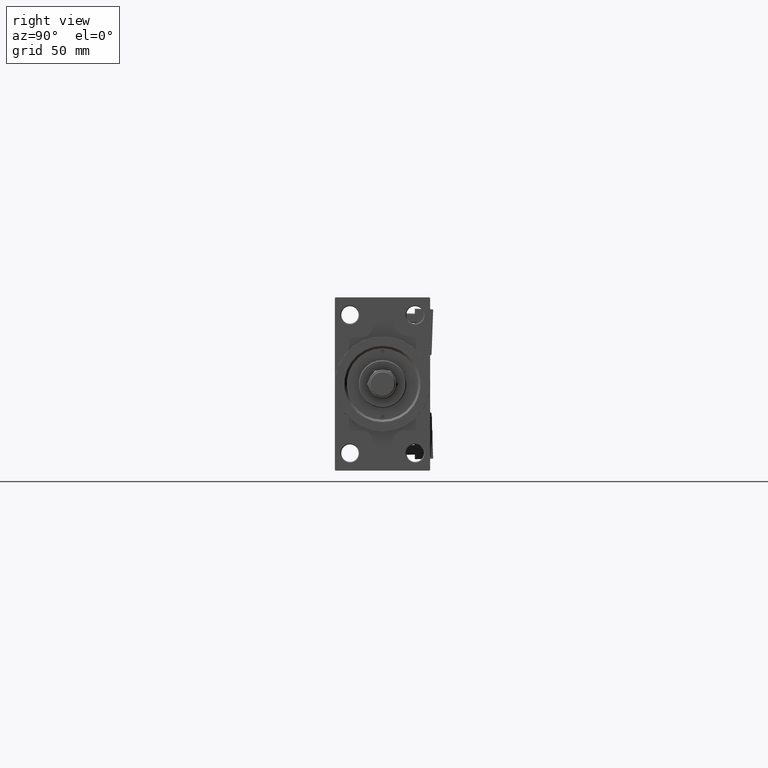
[diagram: clean part render]
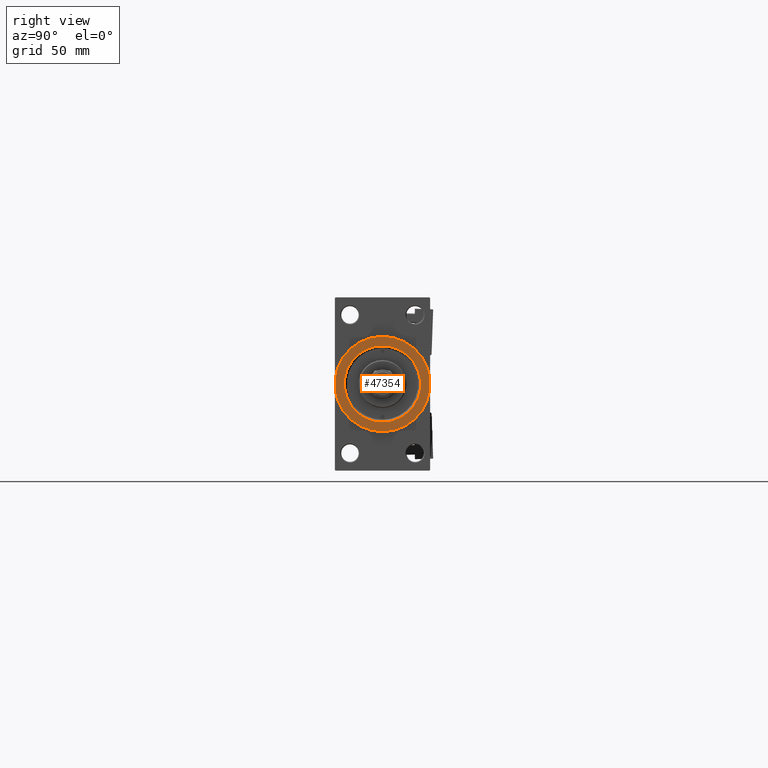
[diagram: same view with one face highlighted and labeled with its STEP entity id]
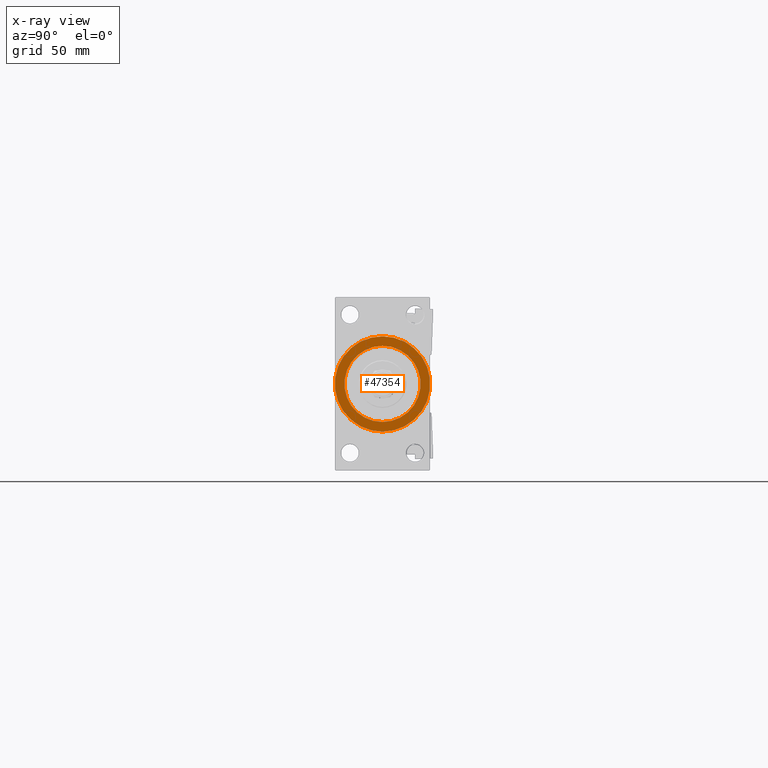
[diagram: x-ray of the same camera — body ghosted, the highlighted face saturated]
A machine part, right view. The second image highlights one B-rep face of the part: STEP entity #47354.
The next image is the same camera in x-ray: the body ghosted, the highlighted face saturated — about 0% of this face is hidden behind the body in this view.
In plain terms, the highlighted planar face has unit normal (1, 0, 0).
Its self-contained STEP definition (entity closure, byte-faithful):
#1306 = DIRECTION ( 'NONE',  ( -1.000000000000000000, -0.000000000000000000, -0.000000000000000000 ) ) ;
#1556 = DIRECTION ( 'NONE',  ( 0.000000000000000000, 0.000000000000000000, -1.000000000000000000 ) ) ;
#2044 = VERTEX_POINT ( 'NONE', #39478 ) ;
#2552 = DIRECTION ( 'NONE',  ( -1.000000000000000000, -0.000000000000000000, -0.000000000000000000 ) ) ;
#2893 = CIRCLE ( 'NONE', #24392, 30.00000000000000000 ) ;
#3105 = AXIS2_PLACEMENT_3D ( 'NONE', #17034, #9261, #40921 ) ;
#3656 = DIRECTION ( 'NONE',  ( 1.000000000000000000, 0.000000000000000000, 0.000000000000000000 ) ) ;
#4974 = CIRCLE ( 'NONE', #33119, 24.00000000000002487 ) ;
#5479 = EDGE_CURVE ( 'NONE', #21797, #15077, #4974, .T. ) ;
#5610 = FACE_OUTER_BOUND ( 'NONE', #23427, .T. ) ;
#9261 = DIRECTION ( 'NONE',  ( 1.000000000000000000, 0.000000000000000000, 0.000000000000000000 ) ) ;
#11244 = ORIENTED_EDGE ( 'NONE', *, *, #5479, .T. ) ;
#12814 = CIRCLE ( 'NONE', #13658, 30.00000000000000000 ) ;
#13658 = AXIS2_PLACEMENT_3D ( 'NONE', #26716, #19183, #50842 ) ;
#15077 = VERTEX_POINT ( 'NONE', #24099 ) ;
#15636 = VERTEX_POINT ( 'NONE', #24229 ) ;
#17034 = CARTESIAN_POINT ( 'NONE',  ( 377.9999999999999432, 0.000000000000000000, 0.000000000000000000 ) ) ;
#18057 = FACE_BOUND ( 'NONE', #49738, .T. ) ;
#18982 = EDGE_CURVE ( 'NONE', #15636, #2044, #12814, .T. ) ;
#19183 = DIRECTION ( 'NONE',  ( 1.000000000000000000, 0.000000000000000000, 0.000000000000000000 ) ) ;
#20918 = ORIENTED_EDGE ( 'NONE', *, *, #49549, .T. ) ;
#21797 = VERTEX_POINT ( 'NONE', #27802 ) ;
#22314 = CARTESIAN_POINT ( 'NONE',  ( 377.9999999999999432, 0.000000000000000000, 0.000000000000000000 ) ) ;
#23427 = EDGE_LOOP ( 'NONE', ( #33949, #50811 ) ) ;
#24099 = CARTESIAN_POINT ( 'NONE',  ( 377.9999999999999432, 0.000000000000000000, -24.00000000000002487 ) ) ;
#24229 = CARTESIAN_POINT ( 'NONE',  ( 377.9999999999999432, 3.673940397442059178E-15, -30.00000000000000000 ) ) ;
#24392 = AXIS2_PLACEMENT_3D ( 'NONE', #22314, #3656, #34532 ) ;
#24644 = CIRCLE ( 'NONE', #38782, 24.00000000000002487 ) ;
#26716 = CARTESIAN_POINT ( 'NONE',  ( 377.9999999999999432, 0.000000000000000000, 0.000000000000000000 ) ) ;
#27802 = CARTESIAN_POINT ( 'NONE',  ( 377.9999999999999432, 2.939152317953650655E-15, 24.00000000000002487 ) ) ;
#33119 = AXIS2_PLACEMENT_3D ( 'NONE', #36862, #1306, #1556 ) ;
#33949 = ORIENTED_EDGE ( 'NONE', *, *, #39498, .T. ) ;
#34532 = DIRECTION ( 'NONE',  ( 0.000000000000000000, 0.000000000000000000, -1.000000000000000000 ) ) ;
#36862 = CARTESIAN_POINT ( 'NONE',  ( 377.9999999999999432, 0.000000000000000000, 0.000000000000000000 ) ) ;
#38105 = CARTESIAN_POINT ( 'NONE',  ( 377.9999999999999432, 0.000000000000000000, 0.000000000000000000 ) ) ;
#38782 = AXIS2_PLACEMENT_3D ( 'NONE', #38105, #2552, #42791 ) ;
#39478 = CARTESIAN_POINT ( 'NONE',  ( 377.9999999999999432, 0.000000000000000000, 30.00000000000000000 ) ) ;
#39498 = EDGE_CURVE ( 'NONE', #2044, #15636, #2893, .T. ) ;
#40921 = DIRECTION ( 'NONE',  ( 0.000000000000000000, 0.000000000000000000, -1.000000000000000000 ) ) ;
#42791 = DIRECTION ( 'NONE',  ( 0.000000000000000000, 0.000000000000000000, -1.000000000000000000 ) ) ;
#45847 = PLANE ( 'NONE',  #3105 ) ;
#47354 = ADVANCED_FACE ( 'NONE', ( #18057, #5610 ), #45847, .T. ) ;
#49549 = EDGE_CURVE ( 'NONE', #15077, #21797, #24644, .T. ) ;
#49738 = EDGE_LOOP ( 'NONE', ( #20918, #11244 ) ) ;
#50811 = ORIENTED_EDGE ( 'NONE', *, *, #18982, .T. ) ;
#50842 = DIRECTION ( 'NONE',  ( 0.000000000000000000, 0.000000000000000000, -1.000000000000000000 ) ) ;